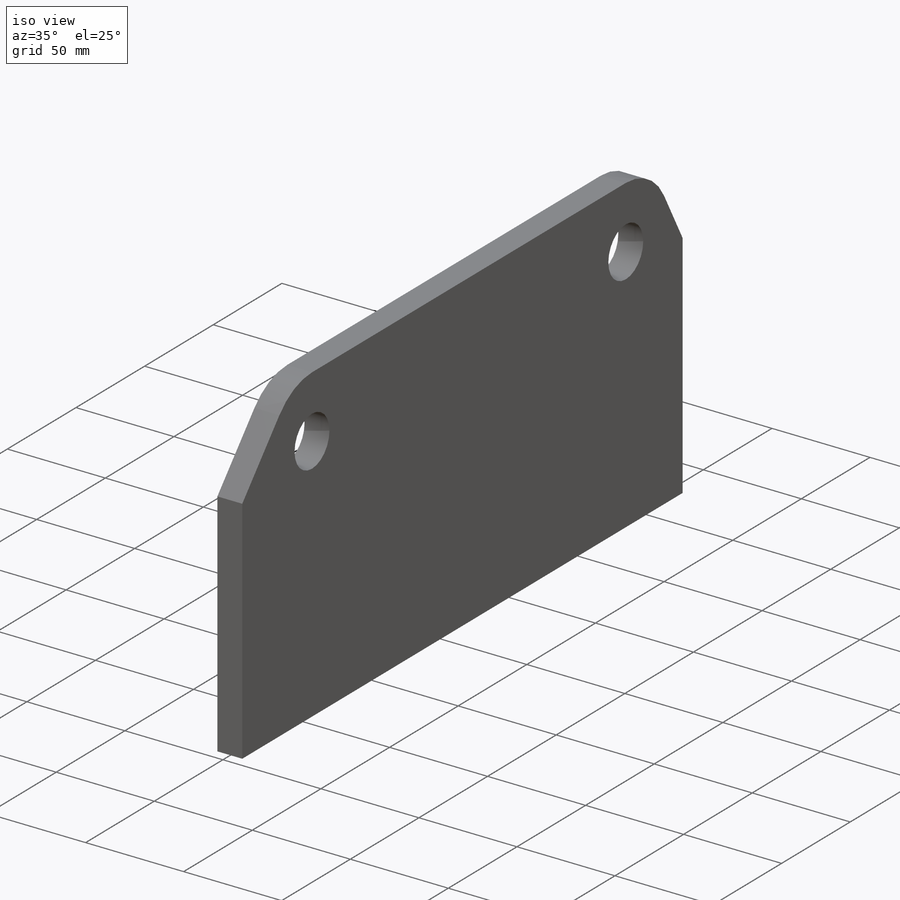
[diagram: iso view]
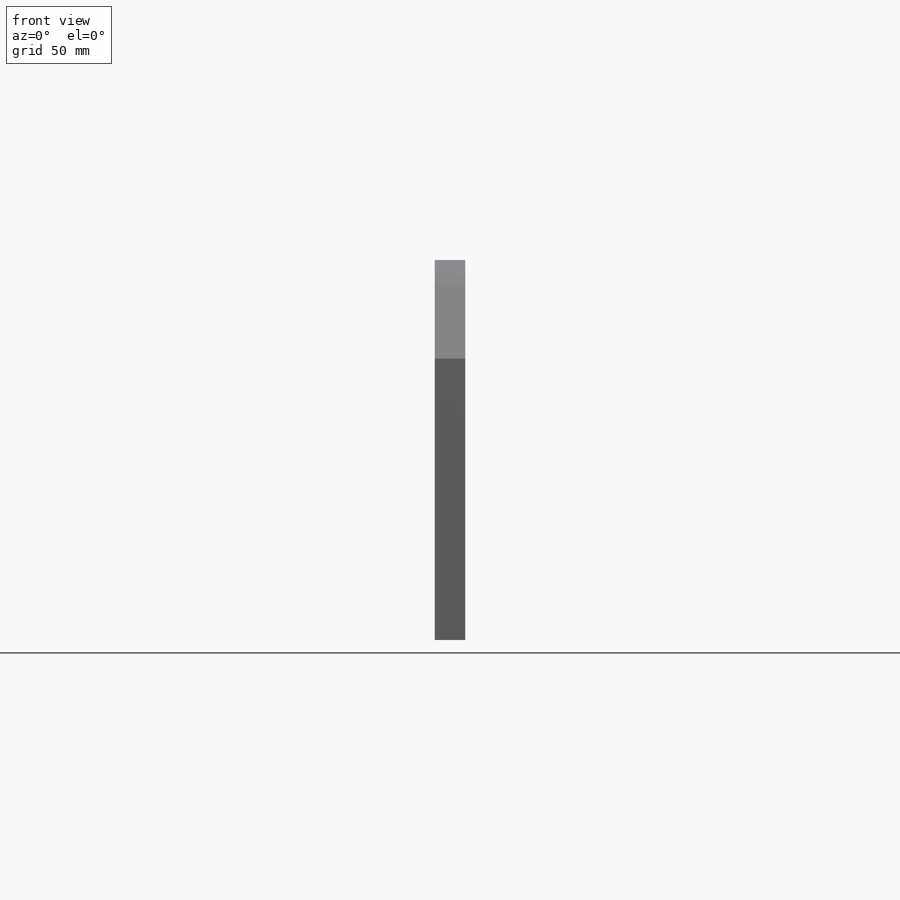
[diagram: front view]
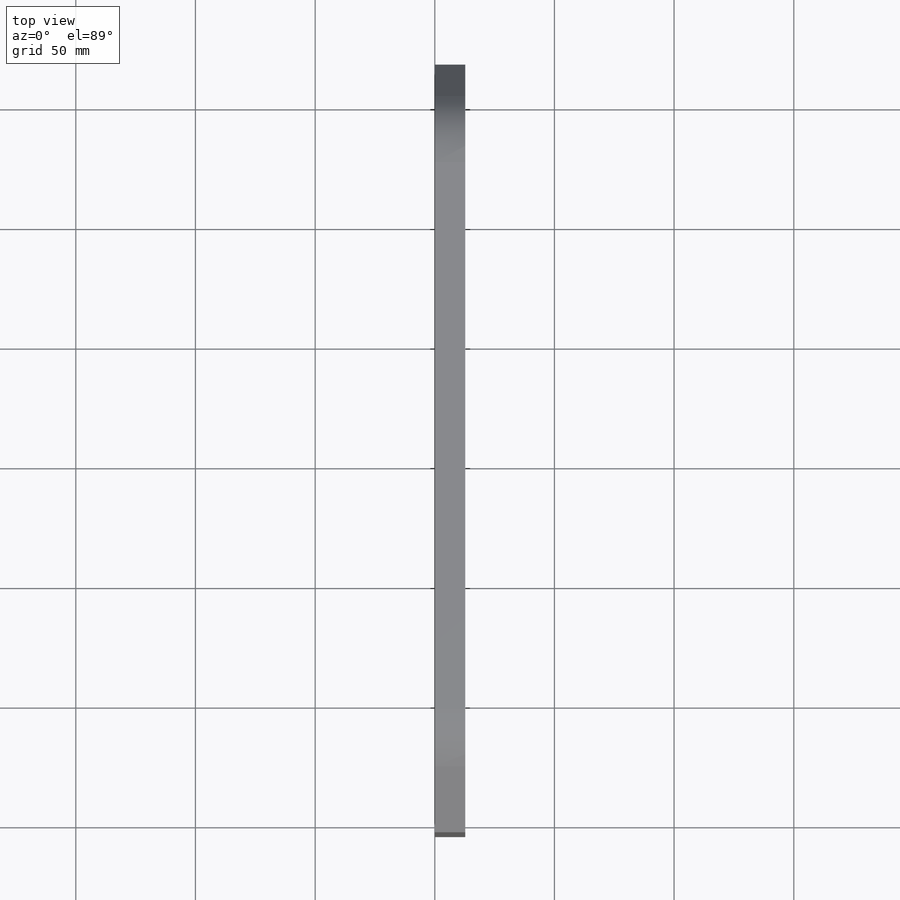
[diagram: top view]
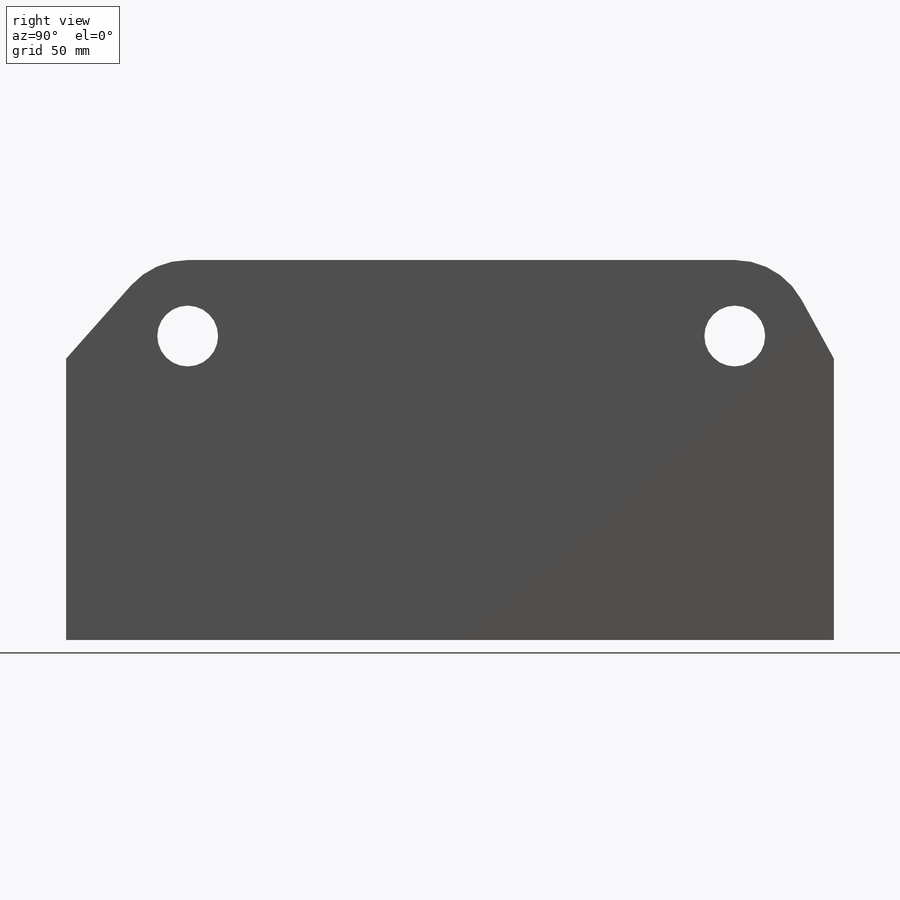
[diagram: right view]
SOLIDWORKS PART (.sldprt)
format: sldprt  version: not decoded by parser v0  size: 261,632 bytes
history: native  units: mm
features: sketch x5, extrude x3, cut_extrude x2, material x1 (+12 scaffold rows collapsed)
feature tree (23):
  scaffold x12  (default folders/planes/origin — collapsed)
  material  "6061-T6 (SS)"
  sketch  "Sketch1"  dims[c1.D1=~9.285877mm c1.D3=~12.882042mm c1.D4=15.875mm c1.D5=101.6mm c1.D9=50.8mm c1.D10=67.31mm c1.D11=79.502mm c1.D12=46.736mm c2.D1=38.1mm c2.D2=50.8mm c2.D3=71.755mm c2.D6=254.0mm c2.D7=38.1mm c2.D8=38.1mm c3.D1=558.8mm c3.D2=88.9mm]
  extrude  "Boss-Extrude1"  Depth=12.7mm
  sketch  "Sketch2"  dims[c1.D1=25.4mm c1.D2=63.5mm c1.D3=127.0mm c1.D4=127.0mm c1.D5=76.2mm c1.D6=254.0mm c1.D7=196.85mm c2.D5=~79.056862mm c3.D5=45.0deg c4.D5=~58.544107mm c5.D5=45.0deg c6.D5=228.6mm]
  extrude  "Boss-Extrude2"  Depth=12.7mm
  sketch  "Sketch3"  dims[c1.D1=~58.544107mm c2.D1=45.0deg]
  extrude  "Boss-Extrude3"  Depth=12.7mm
  sketch  "Sketch4"
  cut_extrude  "Cut-Extrude1"  [1 undecoded]
  sketch  "Sketch5"  dims[D1=50.8mm D2=~117.554935mm]
  cut_extrude  "Cut-Extrude2"  [1 undecoded]
decode coverage: 7 of 10 modeling features carry decoded parameters
note: ~ marks probable driven/reference dimensions
note: 2 parameter values undecoded
note: suppression state not decoded; provenance and decode notes live in map.json
